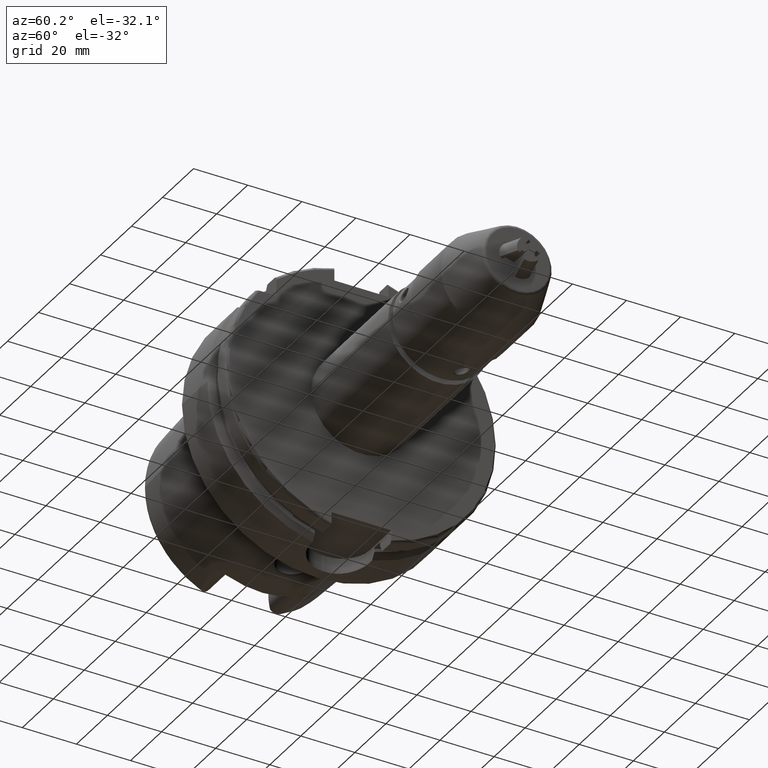
[diagram: clean part render]
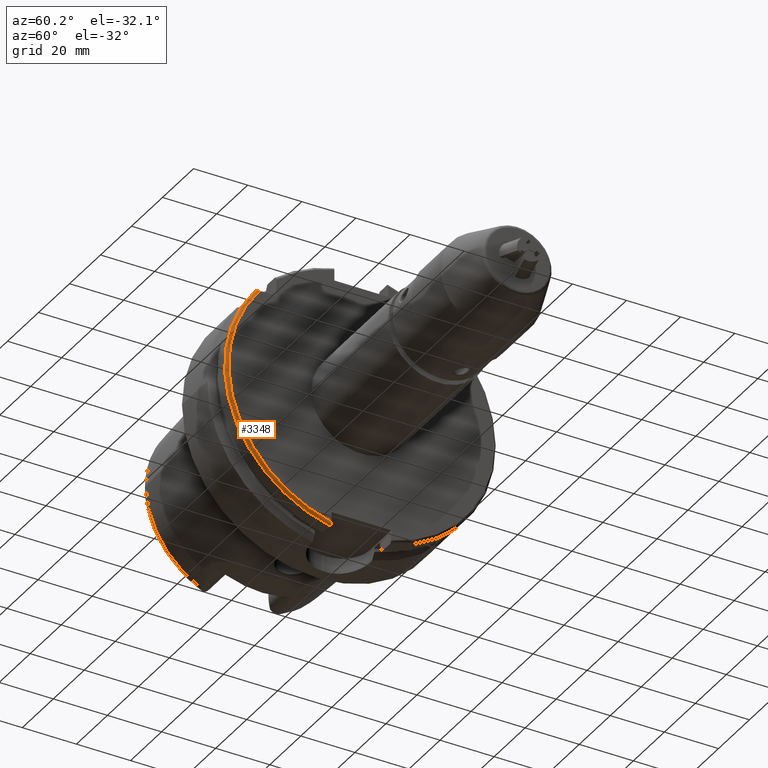
[diagram: same view with one face highlighted and labeled with its STEP entity id]
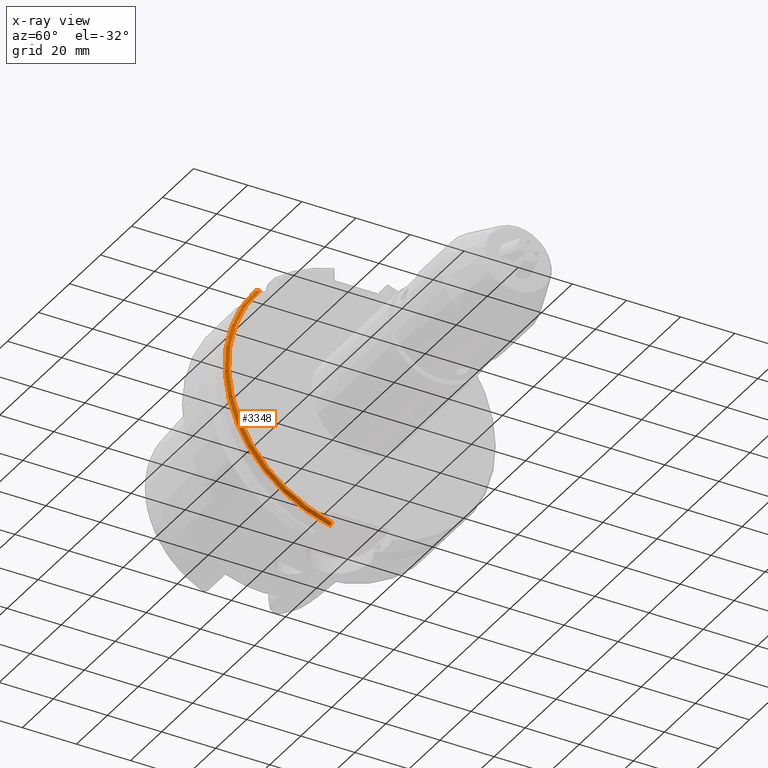
[diagram: x-ray of the same camera — body ghosted, the highlighted face saturated]
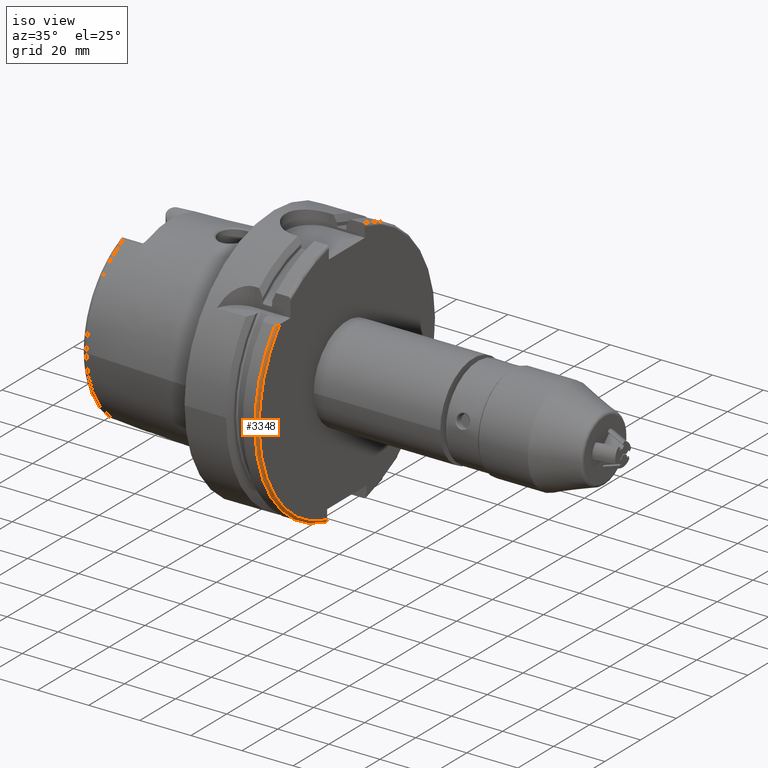
[diagram: same view with one face highlighted and labeled with its STEP entity id]
A machine part, auxiliary view. The second image highlights one B-rep face of the part: STEP entity #3348.
The next image is the same camera in x-ray: the body ghosted, the highlighted face saturated — about 0% of this face is hidden behind the body in this view.
A second angle (iso view) of the same face is appended — the face is thin or edge-on in the first view.
In plain terms, the highlighted toroidal blend (fillet) surface has major radius 49 mm and minor (blend) radius 1 mm.
Its self-contained STEP definition (entity closure, byte-faithful):
#485=TOROIDAL_SURFACE('',#3809,49.,1.);
#557=B_SPLINE_CURVE_WITH_KNOTS('',3,(#6163,#6164,#6165,#6166,#6167,#6168,
#6169,#6170,#6171,#6172),.UNSPECIFIED.,.F.,.F.,(4,2,2,2,4),(-0.170825962094808,
-0.118543630596578,-0.0729156509442915,-0.0340271521483428,0.),
 .UNSPECIFIED.);
#567=B_SPLINE_CURVE_WITH_KNOTS('',3,(#6367,#6368,#6369,#6370,#6371,#6372,
#6373,#6374,#6375,#6376),.UNSPECIFIED.,.F.,.F.,(4,2,2,2,4),(0.,0.0367272650241839,
0.0739245844742874,0.111709319934006,0.150007250748607),.UNSPECIFIED.);
#778=FACE_OUTER_BOUND('',#965,.T.);
#965=EDGE_LOOP('',(#2684,#2685,#2686,#2687));
#1514=CIRCLE('',#3805,49.);
#1517=CIRCLE('',#3810,50.);
#1745=VERTEX_POINT('',#6160);
#1746=VERTEX_POINT('',#6162);
#1781=VERTEX_POINT('',#6365);
#1782=VERTEX_POINT('',#6366);
#2062=EDGE_CURVE('',#1746,#1745,#557,.T.);
#2111=EDGE_CURVE('',#1781,#1782,#567,.T.);
#2126=EDGE_CURVE('',#1746,#1782,#1514,.T.);
#2133=EDGE_CURVE('',#1745,#1781,#1517,.T.);
#2684=ORIENTED_EDGE('',*,*,#2062,.T.);
#2685=ORIENTED_EDGE('',*,*,#2133,.T.);
#2686=ORIENTED_EDGE('',*,*,#2111,.T.);
#2687=ORIENTED_EDGE('',*,*,#2126,.F.);
#3348=ADVANCED_FACE('',(#778),#485,.T.);
#3805=AXIS2_PLACEMENT_3D('',#6426,#4452,#4453);
#3809=AXIS2_PLACEMENT_3D('',#6447,#4463,#4464);
#3810=AXIS2_PLACEMENT_3D('',#6448,#4465,#4466);
#4452=DIRECTION('center_axis',(1.,0.,0.));
#4453=DIRECTION('ref_axis',(0.,0.,-1.));
#4463=DIRECTION('center_axis',(1.,0.,0.));
#4464=DIRECTION('ref_axis',(0.,0.,-1.));
#4465=DIRECTION('center_axis',(1.,0.,0.));
#4466=DIRECTION('ref_axis',(0.,0.,-1.));
#6160=CARTESIAN_POINT('',(28.,-38.8297566307078,31.5));
#6162=CARTESIAN_POINT('',(29.,-37.5333185316726,31.5));
#6163=CARTESIAN_POINT('Ctrl Pts',(29.,-37.5333185316726,31.5));
#6164=CARTESIAN_POINT('Ctrl Pts',(29.,-37.7075929700001,31.5));
#6165=CARTESIAN_POINT('Ctrl Pts',(28.9664820083304,-37.9140187901503,31.5));
#6166=CARTESIAN_POINT('Ctrl Pts',(28.8572425149189,-38.2215616508799,31.5));
#6167=CARTESIAN_POINT('Ctrl Pts',(28.7693181429129,-38.3814988424326,31.5));
#6168=CARTESIAN_POINT('Ctrl Pts',(28.5860354601279,-38.5954486383736,31.5));
#6169=CARTESIAN_POINT('Ctrl Pts',(28.4650491410143,-38.6932205975694,31.5));
#6170=CARTESIAN_POINT('Ctrl Pts',(28.2458099245109,-38.7981421072727,31.5));
#6171=CARTESIAN_POINT('Ctrl Pts',(28.1134238404945,-38.8297566307078,31.5));
#6172=CARTESIAN_POINT('Ctrl Pts',(28.,-38.8297566307078,31.5));
#6365=CARTESIAN_POINT('',(28.,-11.,-48.7749935930288));
#6366=CARTESIAN_POINT('',(29.,-11.,-47.7493455452533));
#6367=CARTESIAN_POINT('Ctrl Pts',(28.,-11.,-48.7749935930288));
#6368=CARTESIAN_POINT('Ctrl Pts',(28.1224242167473,-11.,-48.7749935930288));
#6369=CARTESIAN_POINT('Ctrl Pts',(28.2664089378791,-11.,-48.7458273107991));
#6370=CARTESIAN_POINT('Ctrl Pts',(28.4935811491945,-11.,-48.6503638235243));
#6371=CARTESIAN_POINT('Ctrl Pts',(28.6165742030546,-11.,-48.5666323605576));
#6372=CARTESIAN_POINT('Ctrl Pts',(28.7919641478885,-11.,-48.3885636593617));
#6373=CARTESIAN_POINT('Ctrl Pts',(28.8748308300651,-11.,-48.2621670900838));
#6374=CARTESIAN_POINT('Ctrl Pts',(28.9706639476237,-11.,-48.0273618911654));
#6375=CARTESIAN_POINT('Ctrl Pts',(29.,-11.,-47.8770053146353));
#6376=CARTESIAN_POINT('Ctrl Pts',(29.,-11.,-47.7493455452533));
#6426=CARTESIAN_POINT('Origin',(29.,0.,0.));
#6447=CARTESIAN_POINT('Origin',(28.,0.,0.));
#6448=CARTESIAN_POINT('Origin',(28.,0.,0.));